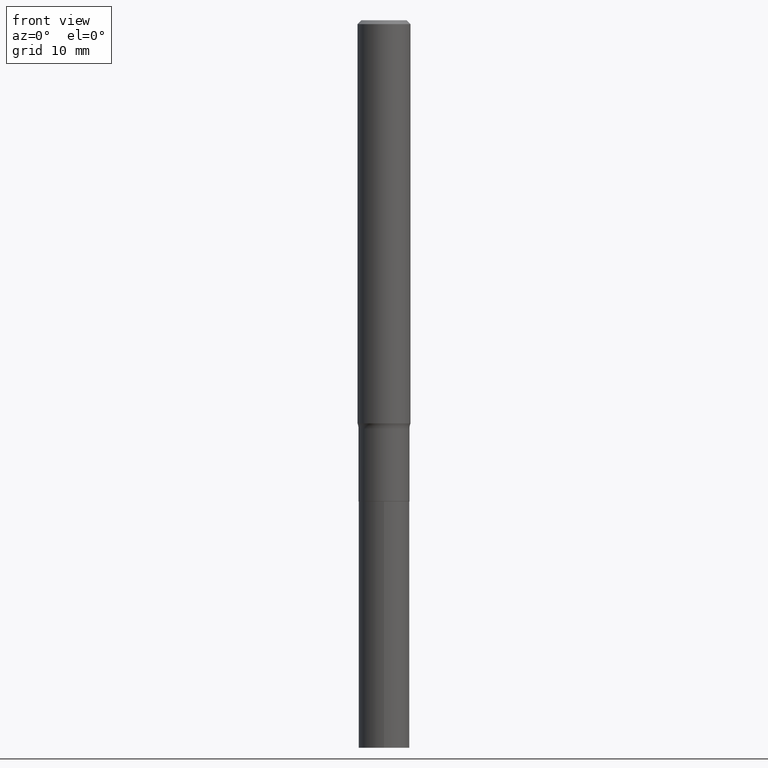
[diagram: clean part render]
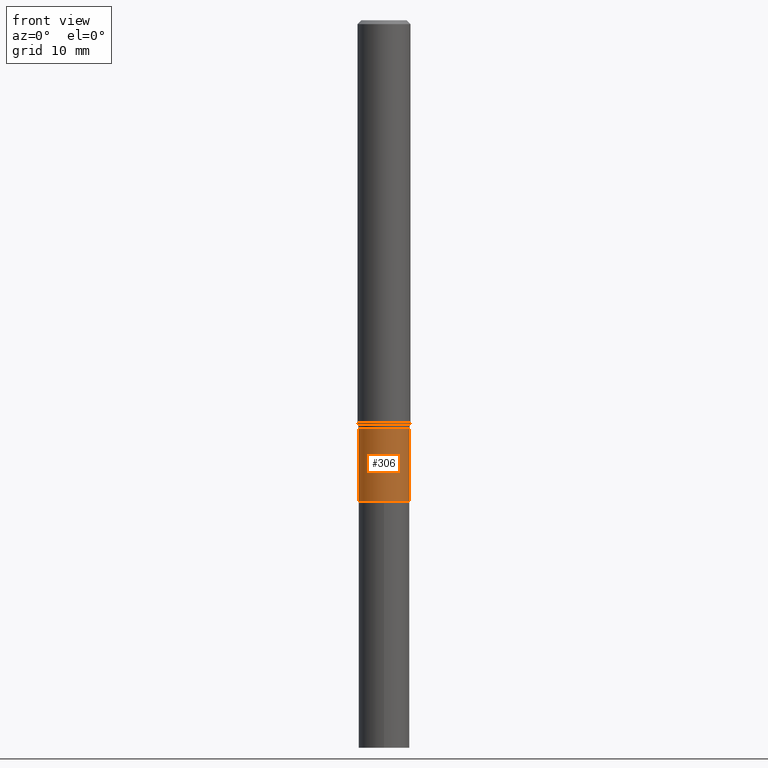
[diagram: same view with one face highlighted and labeled with its STEP entity id]
A machine part, front view. The second image highlights one B-rep face of the part: STEP entity #306.
In plain terms, the highlighted cylindrical surface (edge-blend (fillet) strip) has radius 3.8494 mm, axis along (-0, 0, 1).
Its self-contained STEP definition (entity closure, byte-faithful):
#3 = ORIENTED_EDGE ( 'NONE', *, *, #176, .F. ) ;
#5 = VECTOR ( 'NONE', #112, 39.37007874015748143 ) ;
#29 = EDGE_CURVE ( 'NONE', #248, #220, #289, .T. ) ;
#31 = CYLINDRICAL_SURFACE ( 'NONE', #70, 0.1515499999999999625 ) ;
#44 = EDGE_CURVE ( 'NONE', #58, #248, #218, .T. ) ;
#47 = LINE ( 'NONE', #241, #127 ) ;
#48 = DIRECTION ( 'NONE',  ( 1.000000000000000000, -6.982962677686264344E-15, 0.000000000000000000 ) ) ;
#58 = VERTEX_POINT ( 'NONE', #442 ) ;
#70 = AXIS2_PLACEMENT_3D ( 'NONE', #312, #137, #357 ) ;
#74 = DIRECTION ( 'NONE',  ( 1.000000000000000000, -6.982962677686268288E-15, 0.000000000000000000 ) ) ;
#112 = DIRECTION ( 'NONE',  ( -2.445468806185136877E-29, 3.491481338843145188E-15, 1.000000000000000000 ) ) ;
#119 = CARTESIAN_POINT ( 'NONE',  ( 5.942978292791119365E-29, -8.484997949656613578E-15, -2.430200000000000138 ) ) ;
#127 = VECTOR ( 'NONE', #452, 39.37007874015748143 ) ;
#137 = DIRECTION ( 'NONE',  ( -2.445468806185136597E-29, 3.491481338843145583E-15, 1.000000000000000000 ) ) ;
#148 = DIRECTION ( 'NONE',  ( -2.445468806185136597E-29, 3.491481338843145583E-15, 1.000000000000000000 ) ) ;
#152 = CIRCLE ( 'NONE', #269, 0.1515499999999999348 ) ;
#176 = EDGE_CURVE ( 'NONE', #58, #386, #47, .T. ) ;
#178 = FACE_OUTER_BOUND ( 'NONE', #251, .T. ) ;
#193 = EDGE_CURVE ( 'NONE', #386, #220, #152, .T. ) ;
#218 = CIRCLE ( 'NONE', #412, 0.1515499999999999903 ) ;
#220 = VERTEX_POINT ( 'NONE', #236 ) ;
#236 = CARTESIAN_POINT ( 'NONE',  ( 0.1515499999999999348, -9.543265943459966118E-15, -2.430200000000000138 ) ) ;
#241 = CARTESIAN_POINT ( 'NONE',  ( -0.1515499999999999625, 1.076827516044431565E-15, -7.454646129281306909E-30 ) ) ;
#248 = VERTEX_POINT ( 'NONE', #250 ) ;
#250 = CARTESIAN_POINT ( 'NONE',  ( 0.1515499999999999903, -1.105856884451789432E-14, -2.864200000000000745 ) ) ;
#251 = EDGE_LOOP ( 'NONE', ( #3, #321, #311, #278 ) ) ;
#269 = AXIS2_PLACEMENT_3D ( 'NONE', #119, #383, #48 ) ;
#278 = ORIENTED_EDGE ( 'NONE', *, *, #193, .F. ) ;
#289 = LINE ( 'NONE', #445, #5 ) ;
#306 = ADVANCED_FACE ( 'NONE', ( #178 ), #31, .T. ) ;
#311 = ORIENTED_EDGE ( 'NONE', *, *, #29, .T. ) ;
#312 = CARTESIAN_POINT ( 'NONE',  ( 0.000000000000000000, 0.000000000000000000, 0.000000000000000000 ) ) ;
#321 = ORIENTED_EDGE ( 'NONE', *, *, #44, .T. ) ;
#357 = DIRECTION ( 'NONE',  ( 1.000000000000000000, -6.982962677686265922E-15, 4.876176775795935232E-29 ) ) ;
#383 = DIRECTION ( 'NONE',  ( -2.445468806185136597E-29, 3.491481338843145583E-15, 1.000000000000000000 ) ) ;
#386 = VERTEX_POINT ( 'NONE', #451 ) ;
#400 = CARTESIAN_POINT ( 'NONE',  ( 7.004311754675469257E-29, -1.000030085071454021E-14, -2.864200000000000745 ) ) ;
#412 = AXIS2_PLACEMENT_3D ( 'NONE', #400, #148, #74 ) ;
#442 = CARTESIAN_POINT ( 'NONE',  ( -0.1515499999999999903, -8.165821884141145327E-15, -2.864200000000000745 ) ) ;
#445 = CARTESIAN_POINT ( 'NONE',  ( 0.1515499999999999625, -1.058267993803353329E-15, 7.389845903718738166E-30 ) ) ;
#451 = CARTESIAN_POINT ( 'NONE',  ( -0.1515499999999999348, -8.165821884141145327E-15, -2.430200000000000138 ) ) ;
#452 = DIRECTION ( 'NONE',  ( -2.445468806185136877E-29, 3.491481338843145188E-15, 1.000000000000000000 ) ) ;